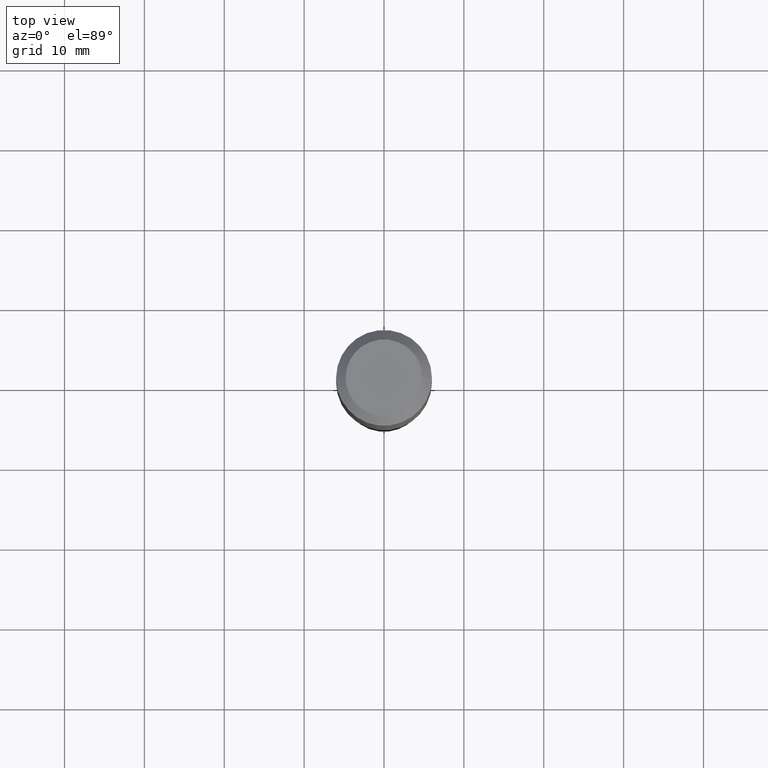
[diagram: clean part render]
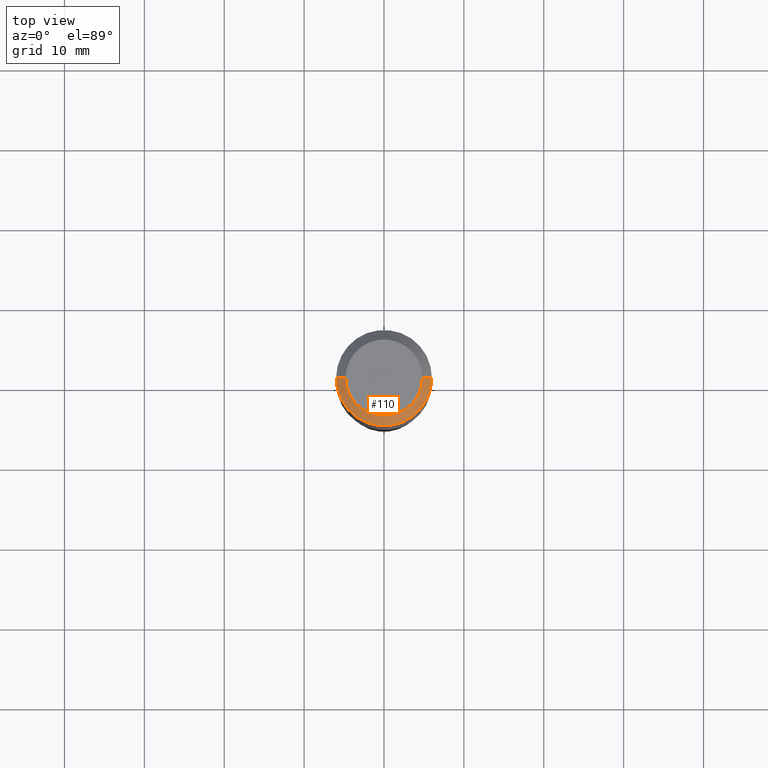
[diagram: same view with one face highlighted and labeled with its STEP entity id]
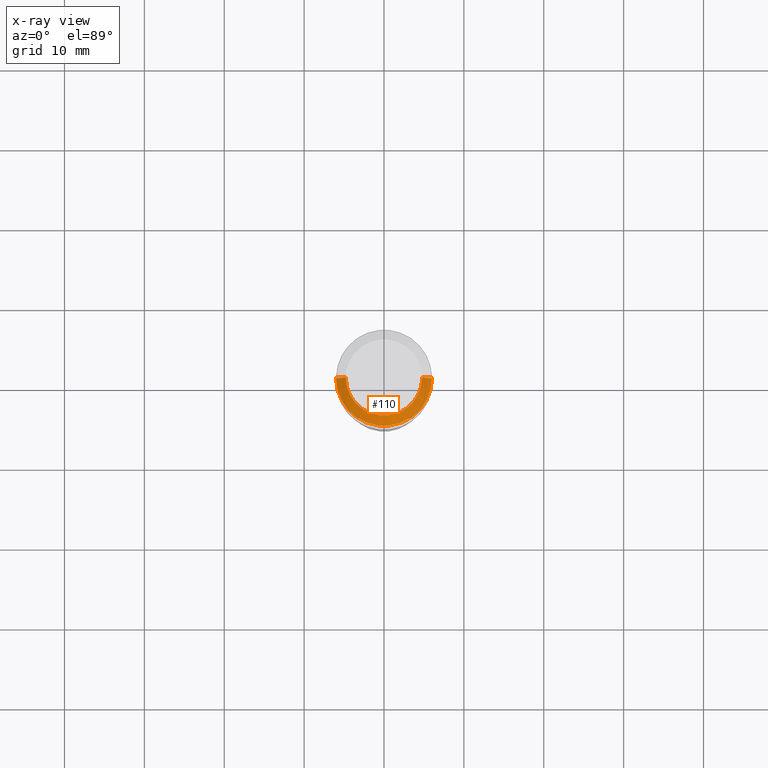
[diagram: x-ray of the same camera — body ghosted, the highlighted face saturated]
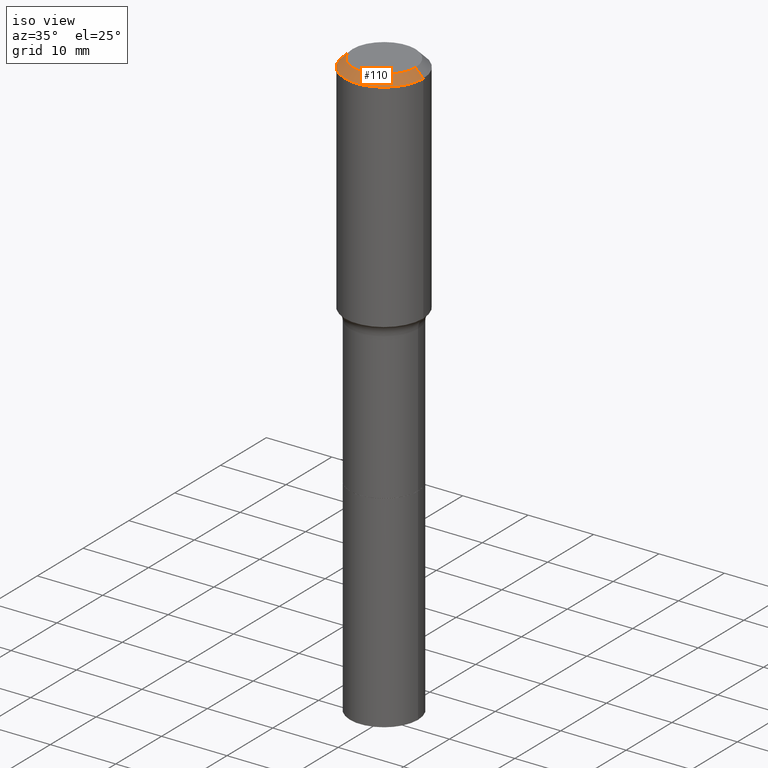
[diagram: same view with one face highlighted and labeled with its STEP entity id]
A machine part, top view. The second image highlights one B-rep face of the part: STEP entity #110.
The next image is the same camera in x-ray: the body ghosted, the highlighted face saturated — about 0% of this face is hidden behind the body in this view.
A second angle (iso view) of the same face is appended — the face is thin or edge-on in the first view.
In plain terms, the highlighted conical surface has half-angle 45 deg.
Its self-contained STEP definition (entity closure, byte-faithful):
#4 = VECTOR ( 'NONE', #356, 39.37007874015748143 ) ;
#5 = DIRECTION ( 'NONE',  ( -2.445468806185136597E-29, 3.491481338843145583E-15, 1.000000000000000000 ) ) ;
#14 = ORIENTED_EDGE ( 'NONE', *, *, #283, .F. ) ;
#37 = CARTESIAN_POINT ( 'NONE',  ( 0.2361999999999999933, -1.785387205520586782E-15, -0.04724000000000028870 ) ) ;
#40 = CARTESIAN_POINT ( 'NONE',  ( 1.155239464041865682E-30, -1.649375784469512105E-16, -0.04724000000000028870 ) ) ;
#59 = AXIS2_PLACEMENT_3D ( 'NONE', #40, #270, #76 ) ;
#71 = AXIS2_PLACEMENT_3D ( 'NONE', #122, #5, #236 ) ;
#76 = DIRECTION ( 'NONE',  ( -1.000000000000000000, 6.982962677686266711E-15, 0.000000000000000000 ) ) ;
#80 = CARTESIAN_POINT ( 'NONE',  ( 0.2361999999999999933, -1.814313362916447440E-15, -0.04724000000000028870 ) ) ;
#82 = ORIENTED_EDGE ( 'NONE', *, *, #158, .T. ) ;
#108 = DIRECTION ( 'NONE',  ( 1.000000000000000000, -6.982962677686266711E-15, 0.000000000000000000 ) ) ;
#110 = ADVANCED_FACE ( 'NONE', ( #310 ), #284, .T. ) ;
#122 = CARTESIAN_POINT ( 'NONE',  ( -9.427742298522546243E-47, 1.346031739168365344E-32, 3.855188123715862256E-18 ) ) ;
#125 = VERTEX_POINT ( 'NONE', #271 ) ;
#137 = DIRECTION ( 'NONE',  ( -2.445468806185136597E-29, 3.491481338843145583E-15, 1.000000000000000000 ) ) ;
#158 = EDGE_CURVE ( 'NONE', #461, #467, #160, .T. ) ;
#160 = CIRCLE ( 'NONE', #459, 0.2361999999999999933 ) ;
#213 = EDGE_LOOP ( 'NONE', ( #14, #421, #216, #82 ) ) ;
#216 = ORIENTED_EDGE ( 'NONE', *, *, #506, .T. ) ;
#231 = EDGE_CURVE ( 'NONE', #237, #125, #479, .T. ) ;
#236 = DIRECTION ( 'NONE',  ( 1.000000000000000000, -6.982962677686266711E-15, 4.876185090822587894E-29 ) ) ;
#237 = VERTEX_POINT ( 'NONE', #483 ) ;
#270 = DIRECTION ( 'NONE',  ( 2.445468806185136597E-29, -3.491481338843145583E-15, -1.000000000000000000 ) ) ;
#271 = CARTESIAN_POINT ( 'NONE',  ( 0.1889600000000000168, -1.540873453589747738E-15, 3.855188123725863225E-18 ) ) ;
#283 = EDGE_CURVE ( 'NONE', #125, #467, #396, .T. ) ;
#284 = CONICAL_SURFACE ( 'NONE', #59, 0.2361999999999999933, 0.7853981633974452814 ) ;
#310 = FACE_OUTER_BOUND ( 'NONE', #213, .T. ) ;
#316 = CARTESIAN_POINT ( 'NONE',  ( 1.155239464041865682E-30, -1.649375784469512105E-16, -0.04724000000000028870 ) ) ;
#348 = CARTESIAN_POINT ( 'NONE',  ( -0.2361999999999999933, -7.644214085422213814E-16, -0.04724000000000028870 ) ) ;
#356 = DIRECTION ( 'NONE',  ( 0.7071067811865453523, -7.319954787623248157E-15, -0.7071067811865496822 ) ) ;
#379 = DIRECTION ( 'NONE',  ( -0.7071067811865453523, 2.468850131082234184E-15, -0.7071067811865496822 ) ) ;
#396 = LINE ( 'NONE', #37, #4 ) ;
#421 = ORIENTED_EDGE ( 'NONE', *, *, #231, .F. ) ;
#422 = CARTESIAN_POINT ( 'NONE',  ( -0.2361999999999999933, 1.484438206022545019E-15, -0.04724000000000028870 ) ) ;
#426 = VECTOR ( 'NONE', #379, 39.37007874015748143 ) ;
#459 = AXIS2_PLACEMENT_3D ( 'NONE', #316, #137, #108 ) ;
#461 = VERTEX_POINT ( 'NONE', #348 ) ;
#463 = LINE ( 'NONE', #422, #426 ) ;
#467 = VERTEX_POINT ( 'NONE', #80 ) ;
#479 = CIRCLE ( 'NONE', #71, 0.1889600000000000168 ) ;
#483 = CARTESIAN_POINT ( 'NONE',  ( -0.1889600000000000168, 1.401969416799070942E-15, 3.855188123706346622E-18 ) ) ;
#506 = EDGE_CURVE ( 'NONE', #237, #461, #463, .T. ) ;